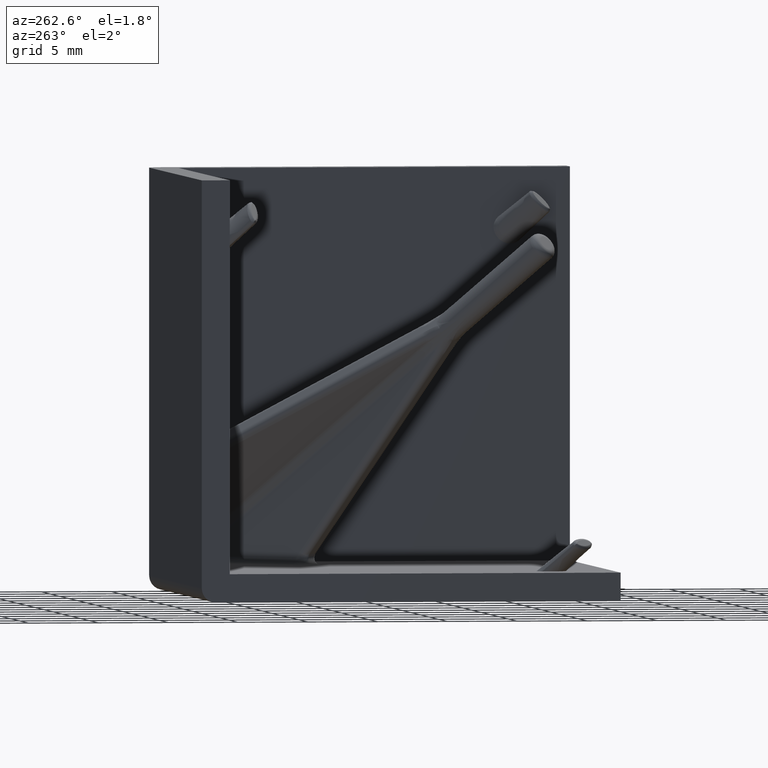
[diagram: clean part render]
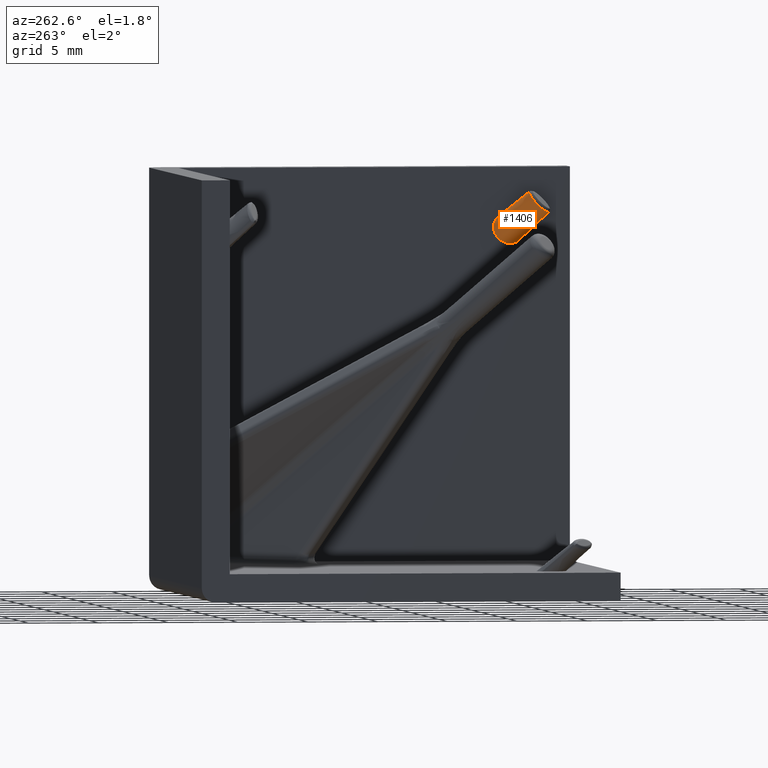
[diagram: same view with one face highlighted and labeled with its STEP entity id]
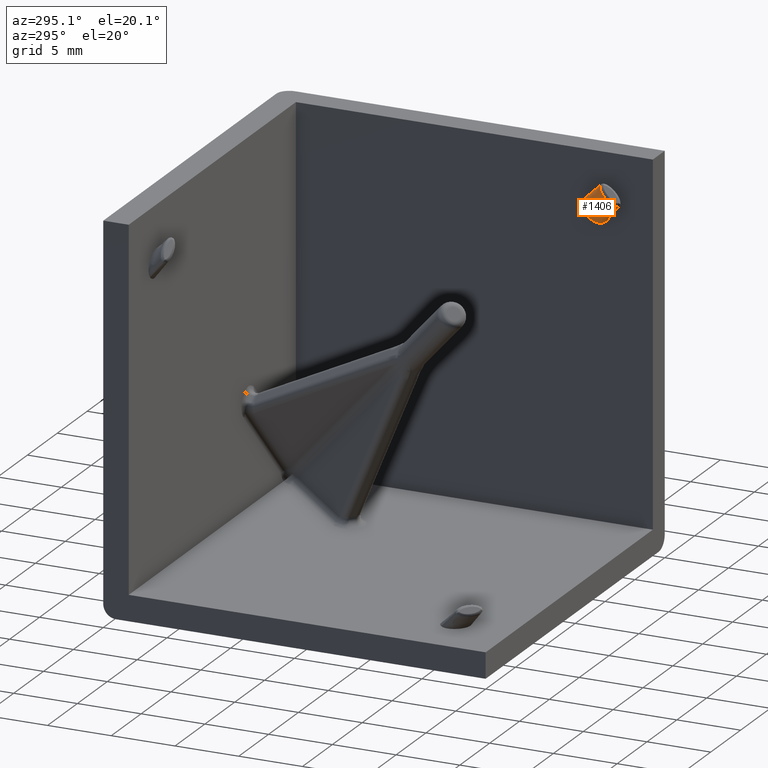
[diagram: same view with one face highlighted and labeled with its STEP entity id]
A machine part, auxiliary view. The second image highlights one B-rep face of the part: STEP entity #1406.
A second angle (auxiliary view) of the same face is appended — the face is thin or edge-on in the first view.
In plain terms, the highlighted face is a freeform B-spline surface patch.
Its self-contained STEP definition (entity closure, byte-faithful):
#240=FACE_OUTER_BOUND('',#339,.T.);
#339=EDGE_LOOP('',(#1150,#1151,#1152,#1153));
#394=LINE('',#2326,#466);
#395=LINE('',#2392,#467);
#466=VECTOR('',#1608,3.34631175296961);
#467=VECTOR('',#1609,3.34631170363267);
#552=B_SPLINE_CURVE_WITH_KNOTS('',3,(#3146,#3147,#3148,#3149,#3150,#3151,
#3152,#3153,#3154,#3155,#3156,#3157,#3158,#3159,#3160,#3161,#3162,#3163,
#3164,#3165,#3166,#3167,#3168,#3169,#3170,#3171,#3172,#3173,#3174,#3175,
#3176,#3177,#3178,#3179,#3180,#3181,#3182,#3183,#3184,#3185,#3186,#3187,
#3188,#3189,#3190,#3191,#3192,#3193,#3194),.UNSPECIFIED.,.F.,.F.,(4,3,3,
3,3,3,3,3,3,3,3,3,3,3,3,3,4),(0.00244537196921434,0.00253996524817028,0.00259682193362424,
0.00264555714228798,0.00274827189803414,0.00291414051583545,0.00305117182685393,
0.00326044208177923,0.00365697168449352,0.00405280940484168,0.0042627715421331,
0.00440001327965377,0.0045656714709529,0.00466930859991251,0.00471712143536279,
0.00477433082615999,0.00486857139977269),.UNSPECIFIED.);
#564=B_SPLINE_CURVE_WITH_KNOTS('',3,(#3663,#3664,#3665,#3666,#3667,#3668,
#3669,#3670,#3671,#3672,#3673,#3674,#3675,#3676,#3677,#3678,#3679,#3680,
#3681,#3682,#3683,#3684),.UNSPECIFIED.,.F.,.F.,(4,2,2,2,2,2,2,2,2,2,4),
(9.99999141953901E-7,0.0202160006703781,0.0404504042571645,0.0725622307276759,
0.100468899443549,0.129149207802572,0.157820517330277,0.185725202574939,
0.221376199660692,0.248789225310466,0.276168483003838),.UNSPECIFIED.);
#596=VERTEX_POINT('',#2305);
#597=VERTEX_POINT('',#2306);
#598=VERTEX_POINT('',#2325);
#601=VERTEX_POINT('',#2385);
#724=EDGE_CURVE('',#597,#598,#394,.T.);
#728=EDGE_CURVE('',#596,#601,#395,.T.);
#771=EDGE_CURVE('',#601,#598,#552,.T.);
#815=EDGE_CURVE('',#597,#596,#564,.T.);
#1150=ORIENTED_EDGE('',*,*,#724,.F.);
#1151=ORIENTED_EDGE('',*,*,#815,.T.);
#1152=ORIENTED_EDGE('',*,*,#728,.T.);
#1153=ORIENTED_EDGE('',*,*,#771,.T.);
#1363=B_SPLINE_SURFACE_WITH_KNOTS('',1,3,((#4111,#4112,#4113,#4114,#4115,
#4116,#4117,#4118,#4119,#4120,#4121,#4122,#4123,#4124,#4125,#4126,#4127,
#4128,#4129,#4130,#4131,#4132,#4133,#4134,#4135,#4136,#4137,#4138,#4139,
#4140,#4141,#4142,#4143,#4144,#4145,#4146,#4147,#4148,#4149,#4150,#4151,
#4152),(#4153,#4154,#4155,#4156,#4157,#4158,#4159,#4160,#4161,#4162,#4163,
#4164,#4165,#4166,#4167,#4168,#4169,#4170,#4171,#4172,#4173,#4174,#4175,
#4176,#4177,#4178,#4179,#4180,#4181,#4182,#4183,#4184,#4185,#4186,#4187,
#4188,#4189,#4190,#4191,#4192,#4193,#4194),(#4195,#4196,#4197,#4198,#4199,
#4200,#4201,#4202,#4203,#4204,#4205,#4206,#4207,#4208,#4209,#4210,#4211,
#4212,#4213,#4214,#4215,#4216,#4217,#4218,#4219,#4220,#4221,#4222,#4223,
#4224,#4225,#4226,#4227,#4228,#4229,#4230,#4231,#4232,#4233,#4234,#4235,
#4236)),.UNSPECIFIED.,.F.,.T.,.F.,(2,1,2),(4,2,2,2,2,2,2,2,2,2,2,2,2,2,
2,2,2,2,2,2,4),(-0.144061170409504,0.,1.),(0.,0.196349540849362,0.392699081698724,
0.785398163397448,1.17809724509617,1.5707963267949,1.96349540849362,2.35619449019234,
2.74889357189107,2.94524311274043,3.14159265358979,3.33794219443916,3.53429173528852,
3.92699081698724,4.31968989868597,4.71238898038469,5.10508806208341,5.49778714378214,
5.89048622548086,6.08683576633022,6.28318530717959),.UNSPECIFIED.);
#1406=ADVANCED_FACE('',(#240),#1363,.F.);
#1608=DIRECTION('',(-0.576998563005115,-0.601676233783452,0.552320892226786));
#1609=DIRECTION('',(-0.576998563005113,-0.552320892226781,0.601676233783459));
#2305=CARTESIAN_POINT('',(28.,3.56797183249975,-5.15687613178503));
#2306=CARTESIAN_POINT('',(28.,5.1568761317849,-3.56797183249986));
#2325=CARTESIAN_POINT('',(26.0691826905272,3.14348004214334,-1.7197340999071));
#2326=CARTESIAN_POINT('',(28.,5.1568761317849,-3.56797183249986));
#2385=CARTESIAN_POINT('',(26.0691829554907,1.71973396675348,-3.14347990895086));
#2392=CARTESIAN_POINT('',(28.,3.56797183249975,-5.15687613178503));
#3146=CARTESIAN_POINT('Ctrl Pts',(26.0691829559515,1.71973396719464,-3.14347990943144));
#3147=CARTESIAN_POINT('Ctrl Pts',(26.043679215061,1.73248583717594,-3.15623177994011));
#3148=CARTESIAN_POINT('Ctrl Pts',(26.0185778525307,1.75011031033326,-3.1637081905511));
#3149=CARTESIAN_POINT('Ctrl Pts',(25.9952769346924,1.77068037961111,-3.16643880817725));
#3150=CARTESIAN_POINT('Ctrl Pts',(25.9812715743651,1.78304432313443,-3.16808008617478));
#3151=CARTESIAN_POINT('Ctrl Pts',(25.9679087685975,1.79644596161959,-3.16804120418553));
#3152=CARTESIAN_POINT('Ctrl Pts',(25.9553892892016,1.81031324640044,-3.16669359675704));
#3153=CARTESIAN_POINT('Ctrl Pts',(25.9446581071805,1.82219971167709,-3.16553848318156));
#3154=CARTESIAN_POINT('Ctrl Pts',(25.9344919103095,1.83447585982545,-3.16342724910113));
#3155=CARTESIAN_POINT('Ctrl Pts',(25.9248476448561,1.84698452501296,-3.16056092676201));
#3156=CARTESIAN_POINT('Ctrl Pts',(25.9045213058999,1.87334789811988,-3.15451984051196));
#3157=CARTESIAN_POINT('Ctrl Pts',(25.8865118255301,1.90071640933883,-3.1451539155532));
#3158=CARTESIAN_POINT('Ctrl Pts',(25.8703289677112,1.92823036862287,-3.13382068631244));
#3159=CARTESIAN_POINT('Ctrl Pts',(25.8441961278968,1.97266120393502,-3.11551925478263));
#3160=CARTESIAN_POINT('Ctrl Pts',(25.8226481381501,2.01769903512092,-3.09203405693436));
#3161=CARTESIAN_POINT('Ctrl Pts',(25.8043530870791,2.06206061356649,-3.06597223808899));
#3162=CARTESIAN_POINT('Ctrl Pts',(25.7892387461831,2.09870965142445,-3.04444143104878));
#3163=CARTESIAN_POINT('Ctrl Pts',(25.7763478587842,2.13496215270785,-3.02108375140726));
#3164=CARTESIAN_POINT('Ctrl Pts',(25.7650701788923,2.17096880534352,-2.996354238115));
#3165=CARTESIAN_POINT('Ctrl Pts',(25.7478472323378,2.22595712385312,-2.95858804064973));
#3166=CARTESIAN_POINT('Ctrl Pts',(25.7345325866828,2.27999190227432,-2.91786807987875));
#3167=CARTESIAN_POINT('Ctrl Pts',(25.7243164345533,2.33256695971622,-2.87550975466846));
#3168=CARTESIAN_POINT('Ctrl Pts',(25.7049586584248,2.43218726479761,-2.79524832490497));
#3169=CARTESIAN_POINT('Ctrl Pts',(25.6962883596129,2.52651143123521,-2.70959702171259));
#3170=CARTESIAN_POINT('Ctrl Pts',(25.69625605745,2.61759198761699,-2.61854878745806));
#3171=CARTESIAN_POINT('Ctrl Pts',(25.6962238116494,2.70851362262083,-2.52765941818439));
#3172=CARTESIAN_POINT('Ctrl Pts',(25.7049094939889,2.79504446189491,-2.43244031241184));
#3173=CARTESIAN_POINT('Ctrl Pts',(25.7243164361614,2.87550975641286,-2.33256696143433));
#3174=CARTESIAN_POINT('Ctrl Pts',(25.7346103592703,2.91819054287231,-2.2795916608206));
#3175=CARTESIAN_POINT('Ctrl Pts',(25.7480210166792,2.95903556376602,-2.22533580502189));
#3176=CARTESIAN_POINT('Ctrl Pts',(25.7652175443383,2.99667709258153,-2.1704985925792));
#3177=CARTESIAN_POINT('Ctrl Pts',(25.7764580535353,3.02128147546798,-2.13465425219711));
#3178=CARTESIAN_POINT('Ctrl Pts',(25.789294014781,3.04452015453739,-2.09857572188105));
#3179=CARTESIAN_POINT('Ctrl Pts',(25.8043531143433,3.06597226778279,-2.06206064225833));
#3180=CARTESIAN_POINT('Ctrl Pts',(25.8225302610419,3.09186612736207,-2.01798496852583));
#3181=CARTESIAN_POINT('Ctrl Pts',(25.8439413456266,3.11525950976199,-1.97317586786805));
#3182=CARTESIAN_POINT('Ctrl Pts',(25.8699617406627,3.13356293914982,-1.9288552957411));
#3183=CARTESIAN_POINT('Ctrl Pts',(25.8862403141203,3.14501371533537,-1.9011279807616));
#3184=CARTESIAN_POINT('Ctrl Pts',(25.9042924439616,3.15445184514141,-1.87364480246685));
#3185=CARTESIAN_POINT('Ctrl Pts',(25.9248476718346,3.16056095601903,-1.84698455251353));
#3186=CARTESIAN_POINT('Ctrl Pts',(25.9343307956706,3.16337938524484,-1.83468488581224));
#3187=CARTESIAN_POINT('Ctrl Pts',(25.9443481701897,3.16547811186861,-1.82257003408715));
#3188=CARTESIAN_POINT('Ctrl Pts',(25.95496735985,3.16664765389767,-1.81078112546284));
#3189=CARTESIAN_POINT('Ctrl Pts',(25.9676735163768,3.16804704354617,-1.79667536757986));
#3190=CARTESIAN_POINT('Ctrl Pts',(25.9811587061399,3.16809331006246,-1.78314395847288));
#3191=CARTESIAN_POINT('Ctrl Pts',(25.9952769323647,3.16643880568536,-1.77068037730526));
#3192=CARTESIAN_POINT('Ctrl Pts',(26.01853377393,3.16371335380816,-1.75014921935833));
#3193=CARTESIAN_POINT('Ctrl Pts',(26.0435308057743,3.15630594979061,-1.7325600770094));
#3194=CARTESIAN_POINT('Ctrl Pts',(26.0691826905272,3.14348004214334,-1.7197340999071));
#3663=CARTESIAN_POINT('Ctrl Pts',(28.,5.1568761317849,-3.56797183249986));
#3664=CARTESIAN_POINT('Ctrl Pts',(28.,5.20586207157469,-3.61424177106486));
#3665=CARTESIAN_POINT('Ctrl Pts',(28.,5.25075831783973,-3.66654518253375));
#3666=CARTESIAN_POINT('Ctrl Pts',(28.,5.32770002265028,-3.77695119702635));
#3667=CARTESIAN_POINT('Ctrl Pts',(28.0000000000205,5.3600224083084,-3.83547445087811));
#3668=CARTESIAN_POINT('Ctrl Pts',(28.0000000000205,5.42744626984553,-3.99458333181206));
#3669=CARTESIAN_POINT('Ctrl Pts',(28.0000000000063,5.46188957297724,-4.11938322731008));
#3670=CARTESIAN_POINT('Ctrl Pts',(28.0000000000063,5.46242184537132,-4.40221236044351));
#3671=CARTESIAN_POINT('Ctrl Pts',(28.0000000000024,5.43773533590751,-4.544858421299));
#3672=CARTESIAN_POINT('Ctrl Pts',(28.0000000000024,5.31262839606041,-4.84593038071337));
#3673=CARTESIAN_POINT('Ctrl Pts',(28.,5.21727769362636,-4.98560691423799));
#3674=CARTESIAN_POINT('Ctrl Pts',(28.,4.9837774408738,-5.21868588710723));
#3675=CARTESIAN_POINT('Ctrl Pts',(28.0000000000027,4.84396888958345,-5.31377225348438));
#3676=CARTESIAN_POINT('Ctrl Pts',(28.0000000000027,4.54271573551,-5.43830135831356));
#3677=CARTESIAN_POINT('Ctrl Pts',(28.0000000000063,4.40010185189601,-5.46265852448972));
#3678=CARTESIAN_POINT('Ctrl Pts',(28.0000000000063,4.10118439830058,-5.46154398596668));
#3679=CARTESIAN_POINT('Ctrl Pts',(28.0000000000215,3.97525768249603,-5.41940084099735));
#3680=CARTESIAN_POINT('Ctrl Pts',(28.0000000000215,3.83438060685817,-5.35944596788705));
#3681=CARTESIAN_POINT('Ctrl Pts',(28.,3.77611836759667,-5.32718212599873));
#3682=CARTESIAN_POINT('Ctrl Pts',(28.,3.66615736364345,-5.25042496445624));
#3683=CARTESIAN_POINT('Ctrl Pts',(28.,3.6140723903173,-5.20568275330047));
#3684=CARTESIAN_POINT('Ctrl Pts',(28.,3.56797183249975,-5.15687613178503));
#4111=CARTESIAN_POINT('Ctrl Pts',(29.9256567285935,5.41127008426653,-7.16489133720531));
#4112=CARTESIAN_POINT('Ctrl Pts',(29.9782059866596,5.38499546084409,-7.13861670256163));
#4113=CARTESIAN_POINT('Ctrl Pts',(30.030305949527,5.36931317618032,-7.10219902435804));
#4114=CARTESIAN_POINT('Ctrl Pts',(30.1228166868228,5.35847131279472,-7.02053015044783));
#4115=CARTESIAN_POINT('Ctrl Pts',(30.1634580545323,5.36272560436648,-6.97563449116659));
#4116=CARTESIAN_POINT('Ctrl Pts',(30.2700079982358,5.39438713722375,-6.83742301460573));
#4117=CARTESIAN_POINT('Ctrl Pts',(30.3222749119817,5.43951971409594,-6.74002352398762));
#4118=CARTESIAN_POINT('Ctrl Pts',(30.4060488138759,5.55885564561862,-6.53691369057092));
#4119=CARTESIAN_POINT('Ctrl Pts',(30.4369507615596,5.63409814927552,-6.4307692392304));
#4120=CARTESIAN_POINT('Ctrl Pts',(30.4785511540417,5.80657985036628,-6.21668714565729));
#4121=CARTESIAN_POINT('Ctrl Pts',(30.4890373115241,5.9038339895351,-6.10894684900621));
#4122=CARTESIAN_POINT('Ctrl Pts',(30.4890373115241,6.10894684900607,-5.90383398953525));
#4123=CARTESIAN_POINT('Ctrl Pts',(30.4785511540417,6.21668714565721,-5.80657985036649));
#4124=CARTESIAN_POINT('Ctrl Pts',(30.4369507615596,6.43076923923019,-5.63409814927561));
#4125=CARTESIAN_POINT('Ctrl Pts',(30.4060488138757,6.53691369057074,-5.55885564561876));
#4126=CARTESIAN_POINT('Ctrl Pts',(30.3222749119819,6.74002352398751,-5.4395197140961));
#4127=CARTESIAN_POINT('Ctrl Pts',(30.2700079982359,6.83742301460563,-5.39438713722394));
#4128=CARTESIAN_POINT('Ctrl Pts',(30.1634580545323,6.97563449116642,-5.3627256043666));
#4129=CARTESIAN_POINT('Ctrl Pts',(30.1228166868228,7.02053015044772,-5.35847131279489));
#4130=CARTESIAN_POINT('Ctrl Pts',(30.030305949527,7.10219902435787,-5.36931317618046));
#4131=CARTESIAN_POINT('Ctrl Pts',(29.9782050255445,7.13861718872968,-5.38499593579119));
#4132=CARTESIAN_POINT('Ctrl Pts',(29.8731084316425,7.19116548568066,-5.43754423274216));
#4133=CARTESIAN_POINT('Ctrl Pts',(29.8210075076601,7.20684824529137,-5.47396239711396));
#4134=CARTESIAN_POINT('Ctrl Pts',(29.7284967703642,7.21769010867697,-5.55563127102414));
#4135=CARTESIAN_POINT('Ctrl Pts',(29.6878554026547,7.21343581710524,-5.60052693030542));
#4136=CARTESIAN_POINT('Ctrl Pts',(29.5813054589512,7.18177428424791,-5.73873840686621));
#4137=CARTESIAN_POINT('Ctrl Pts',(29.5290385452053,7.1366417073758,-5.83613789748443));
#4138=CARTESIAN_POINT('Ctrl Pts',(29.4452646433111,7.01730577585304,-6.039247730901));
#4139=CARTESIAN_POINT('Ctrl Pts',(29.4143626956275,6.9420632721962,-6.14539218224169));
#4140=CARTESIAN_POINT('Ctrl Pts',(29.3727623031453,6.7695815711054,-6.35947427581459));
#4141=CARTESIAN_POINT('Ctrl Pts',(29.362276145663,6.67232743193657,-6.46721457246573));
#4142=CARTESIAN_POINT('Ctrl Pts',(29.362276145663,6.46721457246564,-6.67232743193678));
#4143=CARTESIAN_POINT('Ctrl Pts',(29.3727623031453,6.35947427581445,-6.76958157110554));
#4144=CARTESIAN_POINT('Ctrl Pts',(29.4143626956275,6.14539218224155,-6.94206327219633));
#4145=CARTESIAN_POINT('Ctrl Pts',(29.4452646433113,6.03924773090091,-7.01730577585322));
#4146=CARTESIAN_POINT('Ctrl Pts',(29.5290385452051,5.83613789748424,-7.13664170737588));
#4147=CARTESIAN_POINT('Ctrl Pts',(29.5813054589511,5.73873840686605,-7.18177428424808));
#4148=CARTESIAN_POINT('Ctrl Pts',(29.6878554026548,5.60052693030528,-7.21343581710536));
#4149=CARTESIAN_POINT('Ctrl Pts',(29.7284967703643,5.555631271024,-7.21769010867711));
#4150=CARTESIAN_POINT('Ctrl Pts',(29.82100750766,5.4739623971138,-7.20684824529152));
#4151=CARTESIAN_POINT('Ctrl Pts',(29.8731074705274,5.43754470768897,-7.19116597184899));
#4152=CARTESIAN_POINT('Ctrl Pts',(29.9256567285935,5.41127008426653,-7.16489133720531));
#4153=CARTESIAN_POINT('Ctrl Pts',(29.4260127018133,4.93299534952587,-6.6438780183856));
#4154=CARTESIAN_POINT('Ctrl Pts',(29.4749730315614,4.9085151895719,-6.61939784859141));
#4155=CARTESIAN_POINT('Ctrl Pts',(29.5235405591293,4.89386756916792,-6.58547794142759));
#4156=CARTESIAN_POINT('Ctrl Pts',(29.6103421231244,4.88369481290554,-6.50884913369487));
#4157=CARTESIAN_POINT('Ctrl Pts',(29.6487775743805,4.88765737255483,-6.46645112278952));
#4158=CARTESIAN_POINT('Ctrl Pts',(29.7503035008201,4.91782602804394,-6.3347565408607));
#4159=CARTESIAN_POINT('Ctrl Pts',(29.8011211350409,4.96130893169024,-6.24045600299362));
#4160=CARTESIAN_POINT('Ctrl Pts',(29.8829109683632,5.07781856417562,-6.04215653718603));
#4161=CARTESIAN_POINT('Ctrl Pts',(29.9133509525608,5.15174880027709,-5.93778631688708));
#4162=CARTESIAN_POINT('Ctrl Pts',(29.9543482325925,5.3217299058271,-5.72680793130514));
#4163=CARTESIAN_POINT('Ctrl Pts',(29.964718151721,5.41778628476255,-5.62038163324123));
#4164=CARTESIAN_POINT('Ctrl Pts',(29.964718151721,5.62038163324109,-5.41778628476269));
#4165=CARTESIAN_POINT('Ctrl Pts',(29.9543482325925,5.72680793130506,-5.3217299058273));
#4166=CARTESIAN_POINT('Ctrl Pts',(29.9133509525608,5.93778631688689,-5.15174880027718));
#4167=CARTESIAN_POINT('Ctrl Pts',(29.8829109683631,6.04215653718586,-5.07781856417576));
#4168=CARTESIAN_POINT('Ctrl Pts',(29.8011211350411,6.24045600299351,-4.96130893169039));
#4169=CARTESIAN_POINT('Ctrl Pts',(29.7503035008202,6.3347565408606,-4.91782602804412));
#4170=CARTESIAN_POINT('Ctrl Pts',(29.6487775743804,6.46645112278936,-4.88765737255495));
#4171=CARTESIAN_POINT('Ctrl Pts',(29.6103421231244,6.50884913369476,-4.8836948129057));
#4172=CARTESIAN_POINT('Ctrl Pts',(29.5235405591293,6.58547794142743,-4.89386756916805));
#4173=CARTESIAN_POINT('Ctrl Pts',(29.4749721839942,6.61939827729505,-4.9085156084356));
#4174=CARTESIAN_POINT('Ctrl Pts',(29.3770532196325,6.66835775947588,-4.95747509061643));
#4175=CARTESIAN_POINT('Ctrl Pts',(29.3284848444974,6.68300579874342,-4.99139542648404));
#4176=CARTESIAN_POINT('Ctrl Pts',(29.2416832805023,6.69317855500579,-5.06802423421673));
#4177=CARTESIAN_POINT('Ctrl Pts',(29.2032478292462,6.68921599535653,-5.11042224512211));
#4178=CARTESIAN_POINT('Ctrl Pts',(29.1017219028066,6.65904733986736,-5.24211682705087));
#4179=CARTESIAN_POINT('Ctrl Pts',(29.0509042685858,6.61556443622113,-5.33641736491805));
#4180=CARTESIAN_POINT('Ctrl Pts',(28.9691144352634,6.49905480373568,-5.53471683072553));
#4181=CARTESIAN_POINT('Ctrl Pts',(28.9386744510659,6.42512456763426,-5.63908705102462));
#4182=CARTESIAN_POINT('Ctrl Pts',(28.8976771710342,6.25514346208422,-5.85006543660638));
#4183=CARTESIAN_POINT('Ctrl Pts',(28.8873072519056,6.15908708314877,-5.95649173467035));
#4184=CARTESIAN_POINT('Ctrl Pts',(28.8873072519056,5.95649173467027,-6.15908708314896));
#4185=CARTESIAN_POINT('Ctrl Pts',(28.8976771710342,5.85006543660625,-6.25514346208435));
#4186=CARTESIAN_POINT('Ctrl Pts',(28.9386744510659,5.63908705102448,-6.42512456763439));
#4187=CARTESIAN_POINT('Ctrl Pts',(28.9691144352636,5.53471683072544,-6.49905480373585));
#4188=CARTESIAN_POINT('Ctrl Pts',(29.0509042685856,5.33641736491787,-6.61556443622122));
#4189=CARTESIAN_POINT('Ctrl Pts',(29.1017219028064,5.24211682705072,-6.65904733986753));
#4190=CARTESIAN_POINT('Ctrl Pts',(29.2032478292463,5.11042224512198,-6.68921599535665));
#4191=CARTESIAN_POINT('Ctrl Pts',(29.2416832805023,5.0680242342166,-6.69317855500593));
#4192=CARTESIAN_POINT('Ctrl Pts',(29.3284848444973,4.99139542648389,-6.68300579874355));
#4193=CARTESIAN_POINT('Ctrl Pts',(29.3770523720652,4.95747550947985,-6.66835818817979));
#4194=CARTESIAN_POINT('Ctrl Pts',(29.4260127018133,4.93299534952587,-6.6438780183856));
#4195=CARTESIAN_POINT('Ctrl Pts',(25.9577358208196,1.61305331808795,-3.02726628783604));
#4196=CARTESIAN_POINT('Ctrl Pts',(25.9817836199547,1.60102941864727,-3.01524238814144));
#4197=CARTESIAN_POINT('Ctrl Pts',(26.0058307629561,1.59356391578988,-2.99866074799763));
#4198=CARTESIAN_POINT('Ctrl Pts',(26.053002124833,1.58803576376973,-2.95701753814092));
#4199=CARTESIAN_POINT('Ctrl Pts',(26.0761252164355,1.58997326752336,-2.93195694278475));
#4200=CARTESIAN_POINT('Ctrl Pts',(26.1427769484647,1.6097791211283,-2.84549935715072));
#4201=CARTESIAN_POINT('Ctrl Pts',(26.1835344150425,1.64181082511264,-2.77271018658836));
#4202=CARTESIAN_POINT('Ctrl Pts',(26.2515518448354,1.73870171488434,-2.607801867024));
#4203=CARTESIAN_POINT('Ctrl Pts',(26.2787851114639,1.80352285134641,-2.51574746393332));
#4204=CARTESIAN_POINT('Ctrl Pts',(26.3155958889935,1.95614608361491,-2.32631345413525));
#4205=CARTESIAN_POINT('Ctrl Pts',(26.3251589400848,2.04388821499863,-2.22900827166018));
#4206=CARTESIAN_POINT('Ctrl Pts',(26.3251589400848,2.22900827166005,-2.04388821499871));
#4207=CARTESIAN_POINT('Ctrl Pts',(26.3155958889935,2.32631345413512,-1.95614608361503));
#4208=CARTESIAN_POINT('Ctrl Pts',(26.2787851114639,2.51574746393325,-1.80352285134649));
#4209=CARTESIAN_POINT('Ctrl Pts',(26.2515518448352,2.60780186702388,-1.73870171488446));
#4210=CARTESIAN_POINT('Ctrl Pts',(26.1835344150427,2.77271018658828,-1.64181082511273));
#4211=CARTESIAN_POINT('Ctrl Pts',(26.1427769484647,2.84549935715064,-1.6097791211284));
#4212=CARTESIAN_POINT('Ctrl Pts',(26.0761252164355,2.93195694278464,-1.58997326752347));
#4213=CARTESIAN_POINT('Ctrl Pts',(26.0530021248329,2.95701753814082,-1.58803576376983));
#4214=CARTESIAN_POINT('Ctrl Pts',(26.0058307629561,2.99866074799753,-1.59356391578999));
#4215=CARTESIAN_POINT('Ctrl Pts',(25.9817835605792,3.01524241795614,-1.60102944820825));
#4216=CARTESIAN_POINT('Ctrl Pts',(25.9336880810601,3.03929015771574,-1.62507718796786));
#4217=CARTESIAN_POINT('Ctrl Pts',(25.9096408786831,3.04675569013402,-1.64165885792647));
#4218=CARTESIAN_POINT('Ctrl Pts',(25.8624695168063,3.05228384215416,-1.68330206778317));
#4219=CARTESIAN_POINT('Ctrl Pts',(25.8393464252037,3.05034633840053,-1.70836266313935));
#4220=CARTESIAN_POINT('Ctrl Pts',(25.7726946931747,3.03054048479559,-1.79482024877336));
#4221=CARTESIAN_POINT('Ctrl Pts',(25.7319372265967,2.99850878081127,-1.86760941933571));
#4222=CARTESIAN_POINT('Ctrl Pts',(25.6639197968039,2.90161789103953,-2.03251773890012));
#4223=CARTESIAN_POINT('Ctrl Pts',(25.6366865301752,2.83679675457748,-2.12457214199075));
#4224=CARTESIAN_POINT('Ctrl Pts',(25.599875752646,2.68417352230899,-2.31400615178886));
#4225=CARTESIAN_POINT('Ctrl Pts',(25.5903127015544,2.59643139092521,-2.41131133426396));
#4226=CARTESIAN_POINT('Ctrl Pts',(25.5903127015544,2.41131133426389,-2.59643139092534));
#4227=CARTESIAN_POINT('Ctrl Pts',(25.599875752646,2.31400615178876,-2.68417352230906));
#4228=CARTESIAN_POINT('Ctrl Pts',(25.6366865301752,2.12457214199065,-2.8367967545776));
#4229=CARTESIAN_POINT('Ctrl Pts',(25.6639197968039,2.03251773890002,-2.90161789103963));
#4230=CARTESIAN_POINT('Ctrl Pts',(25.7319372265967,1.86760941933561,-2.99850878081136));
#4231=CARTESIAN_POINT('Ctrl Pts',(25.7726946931747,1.79482024877326,-3.03054048479568));
#4232=CARTESIAN_POINT('Ctrl Pts',(25.8393464252037,1.70836266313925,-3.05034633840063));
#4233=CARTESIAN_POINT('Ctrl Pts',(25.8624695168063,1.68330206778307,-3.05228384215426));
#4234=CARTESIAN_POINT('Ctrl Pts',(25.9096408786831,1.64165885792636,-3.04675569013411));
#4235=CARTESIAN_POINT('Ctrl Pts',(25.9336880216845,1.62507721752863,-3.03929018753063));
#4236=CARTESIAN_POINT('Ctrl Pts',(25.9577358208196,1.61305331808795,-3.02726628783604));